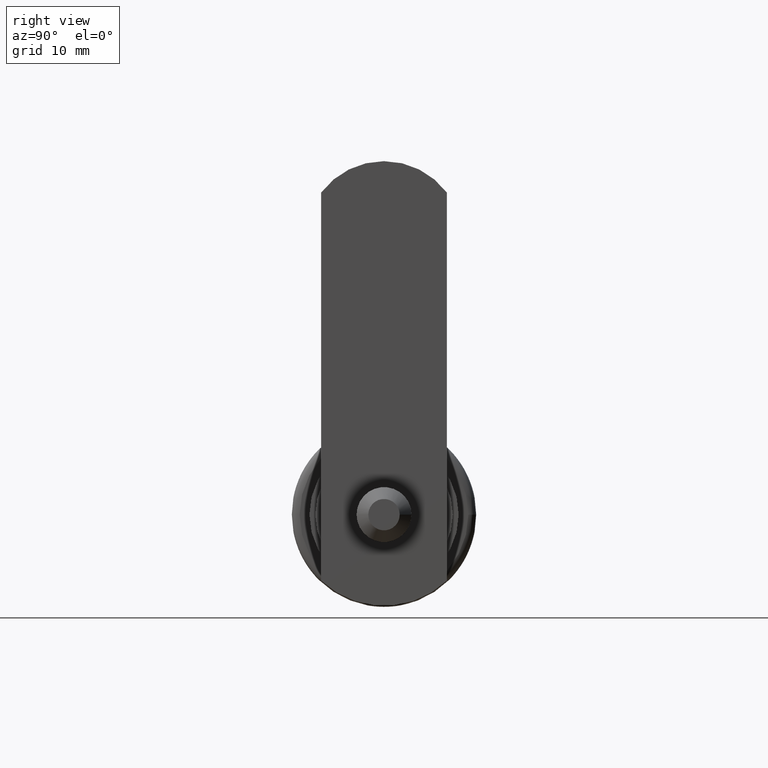
[diagram: clean part render]
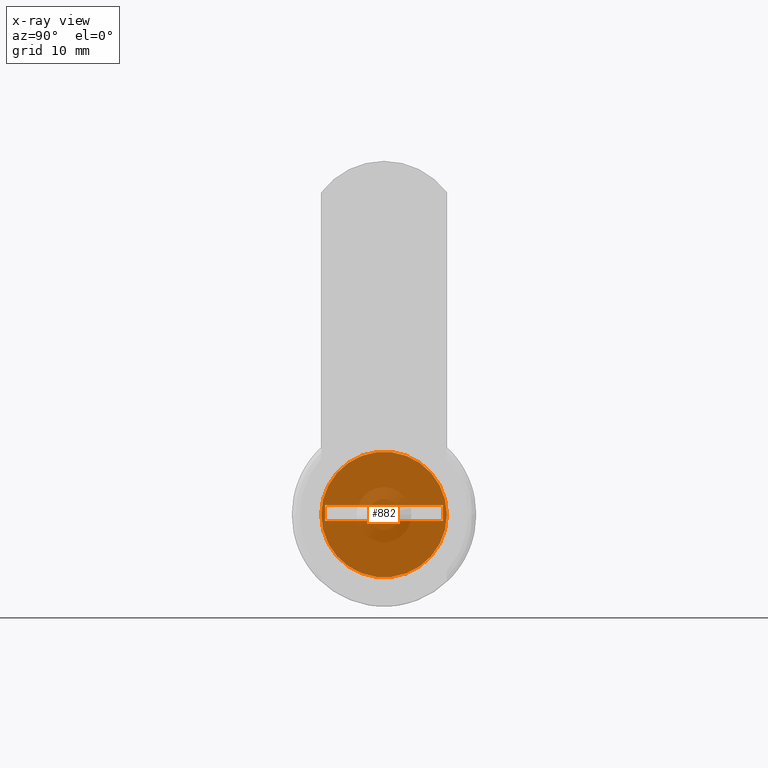
[diagram: x-ray — body ghosted, one internal face saturated and labeled with its STEP entity id]
A machine part, right view, then the same camera in x-ray: the body is ghosted and one INTERNAL B-rep face — a face not visible from any outside direction — is saturated and labeled: STEP entity #882.
In plain terms, the highlighted planar face has unit normal (-1, 0, 0).
Its self-contained STEP definition (entity closure, byte-faithful):
#793=CARTESIAN_POINT('',(18.0,8.0,0.0));
#794=VERTEX_POINT('',#793);
#795=CARTESIAN_POINT('',(18.0,-7.999999999999999,0.0));
#796=VERTEX_POINT('',#795);
#797=CARTESIAN_POINT('',(18.0,0.0,0.0));
#798=DIRECTION('',(-1.0,0.0,0.0));
#799=DIRECTION('',(0.0,1.0,0.0));
#800=AXIS2_PLACEMENT_3D('',#797,#798,#799);
#801=CIRCLE('',#800,7.999999999999999);
#802=EDGE_CURVE('',#794,#796,#801,.T.);
#804=CARTESIAN_POINT('',(18.0,0.0,0.0));
#805=DIRECTION('',(-1.0,0.0,0.0));
#806=DIRECTION('',(0.0,1.0,0.0));
#807=AXIS2_PLACEMENT_3D('',#804,#805,#806);
#808=CIRCLE('',#807,7.999999999999999);
#809=EDGE_CURVE('',#796,#794,#808,.T.);
#839=CARTESIAN_POINT('',(18.0,-9.600004724433347,9.600004724433498));
#840=DIRECTION('',(-1.0,0.0,0.0));
#841=DIRECTION('',(0.0,1.0,0.0));
#842=AXIS2_PLACEMENT_3D('',#839,#840,#841);
#843=PLANE('',#842);
#844=ORIENTED_EDGE('',*,*,#809,.F.);
#845=ORIENTED_EDGE('',*,*,#802,.F.);
#846=EDGE_LOOP('',(#844,#845));
#847=FACE_OUTER_BOUND('',#846,.T.);
#848=CARTESIAN_POINT('',(18.0,-7.511783023674070,-0.803425564556811));
#849=VERTEX_POINT('',#848);
#850=CARTESIAN_POINT('',(18.0,-7.511783023674070,1.196574435443189));
#851=VERTEX_POINT('',#850);
#852=CARTESIAN_POINT('',(18.0,-7.511783023674070,-0.803425564556811));
#853=DIRECTION('',(0.0,0.0,1.0));
#854=VECTOR('',#853,2.0);
#855=LINE('',#852,#854);
#856=EDGE_CURVE('',#849,#851,#855,.T.);
#857=ORIENTED_EDGE('',*,*,#856,.T.);
#858=CARTESIAN_POINT('',(18.0,7.488216976325930,1.196574435443189));
#859=VERTEX_POINT('',#858);
#860=CARTESIAN_POINT('',(18.0,-7.511783023674070,1.196574435443189));
#861=DIRECTION('',(0.0,1.0,0.0));
#862=VECTOR('',#861,15.0);
#863=LINE('',#860,#862);
#864=EDGE_CURVE('',#851,#859,#863,.T.);
#865=ORIENTED_EDGE('',*,*,#864,.T.);
#866=CARTESIAN_POINT('',(18.0,7.488216976325930,-0.803425564556811));
#867=VERTEX_POINT('',#866);
#868=CARTESIAN_POINT('',(18.0,7.488216976325930,1.196574435443189));
#869=DIRECTION('',(0.0,0.0,-1.0));
#870=VECTOR('',#869,2.0);
#871=LINE('',#868,#870);
#872=EDGE_CURVE('',#859,#867,#871,.T.);
#873=ORIENTED_EDGE('',*,*,#872,.T.);
#874=CARTESIAN_POINT('',(18.0,7.488216976325930,-0.803425564556811));
#875=DIRECTION('',(0.0,-1.0,0.0));
#876=VECTOR('',#875,15.0);
#877=LINE('',#874,#876);
#878=EDGE_CURVE('',#867,#849,#877,.T.);
#879=ORIENTED_EDGE('',*,*,#878,.T.);
#880=EDGE_LOOP('',(#857,#865,#873,#879));
#881=FACE_BOUND('',#880,.T.);
#882=ADVANCED_FACE('',(#847,#881),#843,.F.);